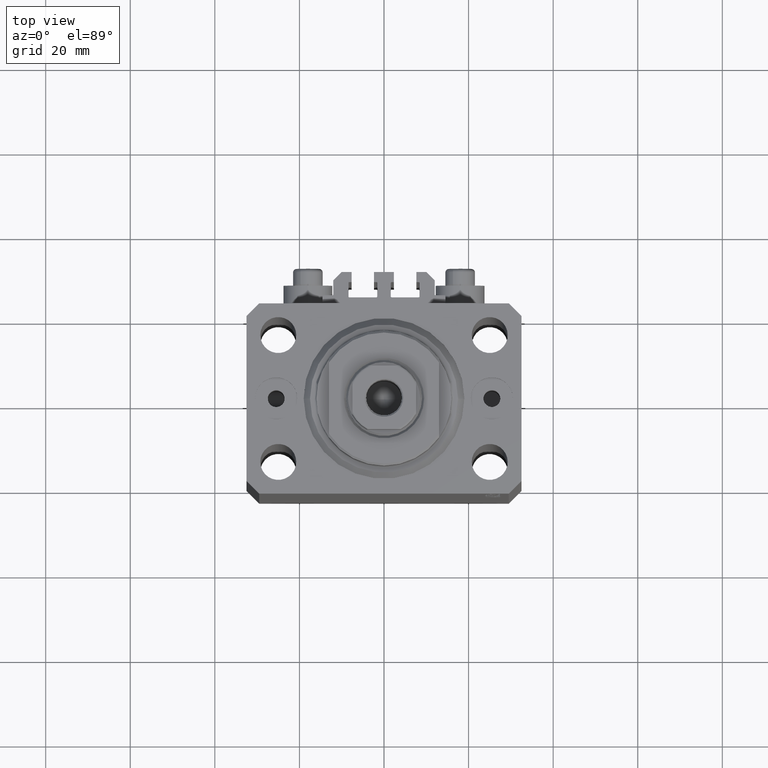
[diagram: clean part render]
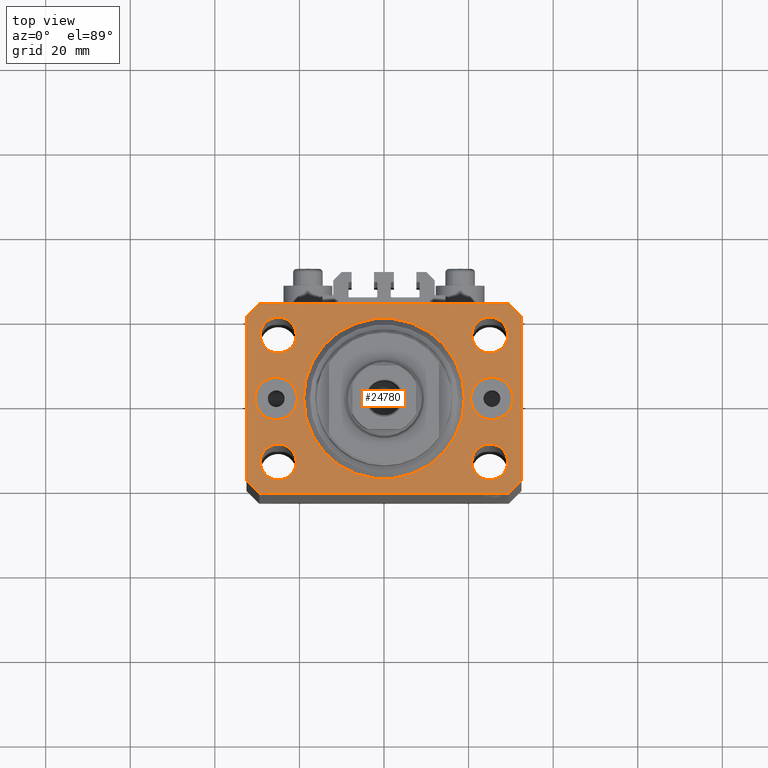
[diagram: same view with one face highlighted and labeled with its STEP entity id]
A machine part, top view. The second image highlights one B-rep face of the part: STEP entity #24780.
In plain terms, the highlighted planar face has unit normal (0, 0, 1).
Its self-contained STEP definition (entity closure, byte-faithful):
#497 = CARTESIAN_POINT ( 'NONE',  ( 24.99999999999999289, -15.00000000000000355, 0.000000000000000000 ) ) ;
#624 = EDGE_CURVE ( 'NONE', #17097, #3085, #45075, .T. ) ;
#657 = ORIENTED_EDGE ( 'NONE', *, *, #6405, .F. ) ;
#824 = DIRECTION ( 'NONE',  ( 1.334402673828349134E-14, 1.000000000000000000, 0.000000000000000000 ) ) ;
#1824 = AXIS2_PLACEMENT_3D ( 'NONE', #20084, #12919, #42280 ) ;
#1940 = ORIENTED_EDGE ( 'NONE', *, *, #33887, .F. ) ;
#2188 = CARTESIAN_POINT ( 'NONE',  ( -19.00000000000000000, 2.326828918379970970E-15, 0.000000000000000000 ) ) ;
#2277 = CARTESIAN_POINT ( 'NONE',  ( 29.49999999999650413, -22.49999999999949196, 0.000000000000000000 ) ) ;
#2363 = CARTESIAN_POINT ( 'NONE',  ( 29.49999999999707967, 22.49999999999952038, 0.000000000000000000 ) ) ;
#2522 = CARTESIAN_POINT ( 'NONE',  ( 0.000000000000000000, 0.000000000000000000, 0.000000000000000000 ) ) ;
#2526 = DIRECTION ( 'NONE',  ( 1.000000000000000000, 0.000000000000000000, 0.000000000000000000 ) ) ;
#2839 = ORIENTED_EDGE ( 'NONE', *, *, #45156, .T. ) ;
#2886 = CARTESIAN_POINT ( 'NONE',  ( 20.75000000002367884, -15.00000000000000355, 0.000000000000000000 ) ) ;
#3085 = VERTEX_POINT ( 'NONE', #37557 ) ;
#3145 = VECTOR ( 'NONE', #27380, 1000.000000000000000 ) ;
#3189 = VERTEX_POINT ( 'NONE', #38037 ) ;
#3345 = CIRCLE ( 'NONE', #1824, 5.000000000003342215 ) ;
#3605 = VERTEX_POINT ( 'NONE', #20776 ) ;
#4018 = CIRCLE ( 'NONE', #10140, 4.249999999976314058 ) ;
#4203 = CARTESIAN_POINT ( 'NONE',  ( 20.49999999999665690, 6.123233995740857512E-16, 0.000000000000000000 ) ) ;
#4318 = CARTESIAN_POINT ( 'NONE',  ( -20.74999999995962341, -15.00000000000000355, 0.000000000000000000 ) ) ;
#4449 = EDGE_CURVE ( 'NONE', #5726, #32735, #3345, .T. ) ;
#4576 = ORIENTED_EDGE ( 'NONE', *, *, #26442, .T. ) ;
#4586 = CIRCLE ( 'NONE', #6907, 5.000000000003342215 ) ;
#4684 = DIRECTION ( 'NONE',  ( 1.000000000000000000, 0.000000000000000000, 0.000000000000000000 ) ) ;
#4784 = DIRECTION ( 'NONE',  ( -1.000000000000000000, -3.528251137580330676E-16, 0.000000000000000000 ) ) ;
#5053 = LINE ( 'NONE', #19619, #37794 ) ;
#5203 = VECTOR ( 'NONE', #824, 1000.000000000000000 ) ;
#5295 = FACE_BOUND ( 'NONE', #29687, .T. ) ;
#5303 = VERTEX_POINT ( 'NONE', #27964 ) ;
#5312 = EDGE_CURVE ( 'NONE', #5303, #23287, #32352, .T. ) ;
#5588 = CARTESIAN_POINT ( 'NONE',  ( -29.25000000002137668, 14.99999999999999645, 0.000000000000000000 ) ) ;
#5726 = VERTEX_POINT ( 'NONE', #40526 ) ;
#5728 = LINE ( 'NONE', #12190, #44851 ) ;
#5996 = AXIS2_PLACEMENT_3D ( 'NONE', #46592, #13900, #11009 ) ;
#6313 = DIRECTION ( 'NONE',  ( 1.000000000000000000, 0.000000000000000000, 0.000000000000000000 ) ) ;
#6405 = EDGE_CURVE ( 'NONE', #14497, #10556, #22436, .T. ) ;
#6474 = DIRECTION ( 'NONE',  ( 0.000000000000000000, 0.000000000000000000, 1.000000000000000000 ) ) ;
#6542 = CIRCLE ( 'NONE', #41614, 4.250000000021375790 ) ;
#6733 = CARTESIAN_POINT ( 'NONE',  ( -32.49999999999650413, -19.49999999999949907, 0.000000000000000000 ) ) ;
#6907 = AXIS2_PLACEMENT_3D ( 'NONE', #28655, #39634, #42767 ) ;
#6936 = CIRCLE ( 'NONE', #10720, 19.00000000000000000 ) ;
#7277 = EDGE_LOOP ( 'NONE', ( #11546, #20777 ) ) ;
#7470 = DIRECTION ( 'NONE',  ( 1.000000000000000000, 0.000000000000000000, 0.000000000000000000 ) ) ;
#8242 = AXIS2_PLACEMENT_3D ( 'NONE', #38473, #35111, #19628 ) ;
#8278 = VERTEX_POINT ( 'NONE', #2188 ) ;
#8597 = CARTESIAN_POINT ( 'NONE',  ( -25.00000000000000000, 14.99999999999999645, 0.000000000000000000 ) ) ;
#9580 = EDGE_CURVE ( 'NONE', #41571, #11416, #46165, .T. ) ;
#9630 = EDGE_CURVE ( 'NONE', #10556, #14497, #6542, .T. ) ;
#9955 = DIRECTION ( 'NONE',  ( 0.000000000000000000, 0.000000000000000000, 1.000000000000000000 ) ) ;
#10140 = AXIS2_PLACEMENT_3D ( 'NONE', #497, #18189, #29858 ) ;
#10287 = DIRECTION ( 'NONE',  ( 0.000000000000000000, 0.000000000000000000, 1.000000000000000000 ) ) ;
#10299 = ORIENTED_EDGE ( 'NONE', *, *, #42006, .T. ) ;
#10556 = VERTEX_POINT ( 'NONE', #5588 ) ;
#10720 = AXIS2_PLACEMENT_3D ( 'NONE', #2522, #20679, #7470 ) ;
#10982 = CARTESIAN_POINT ( 'NONE',  ( 25.00000000000000000, 14.99999999999999289, 0.000000000000000000 ) ) ;
#11009 = DIRECTION ( 'NONE',  ( 1.000000000000000000, 0.000000000000000000, 0.000000000000000000 ) ) ;
#11416 = VERTEX_POINT ( 'NONE', #32536 ) ;
#11546 = ORIENTED_EDGE ( 'NONE', *, *, #42701, .F. ) ;
#11592 = CARTESIAN_POINT ( 'NONE',  ( 32.49999999999651124, -19.49999999999949196, 0.000000000000000000 ) ) ;
#11752 = CARTESIAN_POINT ( 'NONE',  ( 32.49999999999702993, 19.49999999999945999, 0.000000000000000000 ) ) ;
#11802 = EDGE_CURVE ( 'NONE', #28242, #44348, #29606, .T. ) ;
#12190 = CARTESIAN_POINT ( 'NONE',  ( -32.49999999999650413, -19.49999999999949907, 0.000000000000000000 ) ) ;
#12288 = AXIS2_PLACEMENT_3D ( 'NONE', #10982, #10287, #35809 ) ;
#12458 = FACE_BOUND ( 'NONE', #18456, .T. ) ;
#12693 = FACE_BOUND ( 'NONE', #32132, .T. ) ;
#12919 = DIRECTION ( 'NONE',  ( 0.000000000000000000, 0.000000000000000000, 1.000000000000000000 ) ) ;
#13738 = ORIENTED_EDGE ( 'NONE', *, *, #624, .F. ) ;
#13878 = DIRECTION ( 'NONE',  ( 1.000000000000000000, 0.000000000000000000, 0.000000000000000000 ) ) ;
#13900 = DIRECTION ( 'NONE',  ( 0.000000000000000000, 0.000000000000000000, 1.000000000000000000 ) ) ;
#13991 = CARTESIAN_POINT ( 'NONE',  ( 0.000000000000000000, 0.000000000000000000, 0.000000000000000000 ) ) ;
#14377 = CARTESIAN_POINT ( 'NONE',  ( -32.49999999999650413, 19.49999999999949907, 0.000000000000000000 ) ) ;
#14497 = VERTEX_POINT ( 'NONE', #27586 ) ;
#14648 = ORIENTED_EDGE ( 'NONE', *, *, #31332, .F. ) ;
#14833 = ORIENTED_EDGE ( 'NONE', *, *, #36566, .T. ) ;
#15269 = CARTESIAN_POINT ( 'NONE',  ( 29.24999999995729283, 14.99999999999999289, 0.000000000000000000 ) ) ;
#16743 = ORIENTED_EDGE ( 'NONE', *, *, #19873, .F. ) ;
#16841 = CARTESIAN_POINT ( 'NONE',  ( -30.50000000000333955, 6.123233995740857512E-16, 0.000000000000000000 ) ) ;
#17097 = VERTEX_POINT ( 'NONE', #15269 ) ;
#17519 = ORIENTED_EDGE ( 'NONE', *, *, #39868, .T. ) ;
#18189 = DIRECTION ( 'NONE',  ( 0.000000000000000000, 0.000000000000000000, 1.000000000000000000 ) ) ;
#18456 = EDGE_LOOP ( 'NONE', ( #38404, #41334 ) ) ;
#18647 = AXIS2_PLACEMENT_3D ( 'NONE', #36055, #6474, #13878 ) ;
#18681 = EDGE_CURVE ( 'NONE', #23889, #21631, #30299, .T. ) ;
#18997 = LINE ( 'NONE', #11592, #5203 ) ;
#19551 = ORIENTED_EDGE ( 'NONE', *, *, #4449, .F. ) ;
#19578 = DIRECTION ( 'NONE',  ( 0.000000000000000000, 0.000000000000000000, 1.000000000000000000 ) ) ;
#19619 = CARTESIAN_POINT ( 'NONE',  ( -29.49999999999650413, 22.49999999999949907, 0.000000000000000000 ) ) ;
#19628 = DIRECTION ( 'NONE',  ( 1.000000000000000000, 0.000000000000000000, -0.000000000000000000 ) ) ;
#19873 = EDGE_CURVE ( 'NONE', #32735, #5726, #28855, .T. ) ;
#20084 = CARTESIAN_POINT ( 'NONE',  ( -25.50000000000000000, 0.000000000000000000, 0.000000000000000000 ) ) ;
#20099 = FACE_BOUND ( 'NONE', #21817, .T. ) ;
#20177 = AXIS2_PLACEMENT_3D ( 'NONE', #8597, #19578, #34585 ) ;
#20444 = AXIS2_PLACEMENT_3D ( 'NONE', #23968, #30877, #6313 ) ;
#20575 = FACE_OUTER_BOUND ( 'NONE', #28616, .T. ) ;
#20679 = DIRECTION ( 'NONE',  ( 0.000000000000000000, 0.000000000000000000, 1.000000000000000000 ) ) ;
#20776 = CARTESIAN_POINT ( 'NONE',  ( 29.49999999999650413, -22.49999999999949196, 0.000000000000000000 ) ) ;
#20777 = ORIENTED_EDGE ( 'NONE', *, *, #41258, .F. ) ;
#21085 = VECTOR ( 'NONE', #4784, 1000.000000000000000 ) ;
#21159 = AXIS2_PLACEMENT_3D ( 'NONE', #24779, #33033, #46498 ) ;
#21164 = DIRECTION ( 'NONE',  ( 1.000000000000000000, 0.000000000000000000, 0.000000000000000000 ) ) ;
#21240 = VECTOR ( 'NONE', #44698, 1000.000000000000000 ) ;
#21630 = DIRECTION ( 'NONE',  ( 1.000000000000000000, 0.000000000000000000, 0.000000000000000000 ) ) ;
#21631 = VERTEX_POINT ( 'NONE', #36769 ) ;
#21817 = EDGE_LOOP ( 'NONE', ( #17519, #37744 ) ) ;
#21985 = DIRECTION ( 'NONE',  ( 0.000000000000000000, -1.000000000000000000, 0.000000000000000000 ) ) ;
#22436 = CIRCLE ( 'NONE', #20177, 4.250000000021375790 ) ;
#22536 = AXIS2_PLACEMENT_3D ( 'NONE', #46938, #35239, #21630 ) ;
#22586 = EDGE_CURVE ( 'NONE', #44099, #41623, #5728, .T. ) ;
#23287 = VERTEX_POINT ( 'NONE', #4318 ) ;
#23632 = DIRECTION ( 'NONE',  ( 0.7071067811865474617, -0.7071067811865474617, 0.000000000000000000 ) ) ;
#23889 = VERTEX_POINT ( 'NONE', #4203 ) ;
#23901 = PLANE ( 'NONE',  #8242 ) ;
#23968 = CARTESIAN_POINT ( 'NONE',  ( 25.50000000000000000, 0.000000000000000000, 0.000000000000000000 ) ) ;
#24034 = CARTESIAN_POINT ( 'NONE',  ( -29.49999999999650413, 22.49999999999949907, 0.000000000000000000 ) ) ;
#24507 = CARTESIAN_POINT ( 'NONE',  ( -25.00000000000000000, 14.99999999999999645, 0.000000000000000000 ) ) ;
#24779 = CARTESIAN_POINT ( 'NONE',  ( 25.00000000000000000, 14.99999999999999289, 0.000000000000000000 ) ) ;
#24780 = ADVANCED_FACE ( 'NONE', ( #20575, #5295, #34872, #12458, #12693, #27017, #27251, #20099 ), #23901, .T. ) ;
#25072 = ORIENTED_EDGE ( 'NONE', *, *, #11802, .T. ) ;
#25136 = VECTOR ( 'NONE', #27343, 1000.000000000000000 ) ;
#26119 = EDGE_CURVE ( 'NONE', #3189, #30158, #18997, .T. ) ;
#26304 = LINE ( 'NONE', #11752, #21240 ) ;
#26442 = EDGE_CURVE ( 'NONE', #44348, #37924, #5053, .T. ) ;
#26852 = VECTOR ( 'NONE', #21985, 1000.000000000000000 ) ;
#27017 = FACE_BOUND ( 'NONE', #7277, .T. ) ;
#27251 = FACE_BOUND ( 'NONE', #34384, .T. ) ;
#27343 = DIRECTION ( 'NONE',  ( 0.7071067811865483499, 0.7071067811865466846, 0.000000000000000000 ) ) ;
#27380 = DIRECTION ( 'NONE',  ( 1.000000000000000000, 1.176083712526788232E-16, 0.000000000000000000 ) ) ;
#27586 = CARTESIAN_POINT ( 'NONE',  ( -20.74999999997862687, 14.99999999999999645, 0.000000000000000000 ) ) ;
#27964 = CARTESIAN_POINT ( 'NONE',  ( -29.25000000004036593, -15.00000000000000355, 0.000000000000000000 ) ) ;
#28242 = VERTEX_POINT ( 'NONE', #2363 ) ;
#28616 = EDGE_LOOP ( 'NONE', ( #25072, #4576, #2839, #36238, #10299, #37283, #39361, #14833 ) ) ;
#28655 = CARTESIAN_POINT ( 'NONE',  ( 25.50000000000000000, 0.000000000000000000, 0.000000000000000000 ) ) ;
#28855 = CIRCLE ( 'NONE', #5996, 5.000000000003342215 ) ;
#28996 = CARTESIAN_POINT ( 'NONE',  ( -32.49999999999650413, 19.49999999999949907, 0.000000000000000000 ) ) ;
#29606 = LINE ( 'NONE', #36533, #21085 ) ;
#29687 = EDGE_LOOP ( 'NONE', ( #657, #40594 ) ) ;
#29689 = AXIS2_PLACEMENT_3D ( 'NONE', #37383, #45023, #4684 ) ;
#29858 = DIRECTION ( 'NONE',  ( 1.000000000000000000, 0.000000000000000000, 0.000000000000000000 ) ) ;
#30158 = VERTEX_POINT ( 'NONE', #44111 ) ;
#30299 = CIRCLE ( 'NONE', #20444, 5.000000000003342215 ) ;
#30475 = CARTESIAN_POINT ( 'NONE',  ( -29.49999999999650413, -22.49999999999949907, 0.000000000000000000 ) ) ;
#30558 = AXIS2_PLACEMENT_3D ( 'NONE', #13991, #35226, #2526 ) ;
#30877 = DIRECTION ( 'NONE',  ( 0.000000000000000000, -0.000000000000000000, -1.000000000000000000 ) ) ;
#31261 = VERTEX_POINT ( 'NONE', #40455 ) ;
#31332 = EDGE_CURVE ( 'NONE', #3085, #17097, #35626, .T. ) ;
#32132 = EDGE_LOOP ( 'NONE', ( #1940, #39684 ) ) ;
#32352 = CIRCLE ( 'NONE', #18647, 4.250000000040370374 ) ;
#32536 = CARTESIAN_POINT ( 'NONE',  ( 29.24999999997631051, -15.00000000000000355, 0.000000000000000000 ) ) ;
#32547 = EDGE_LOOP ( 'NONE', ( #13738, #14648 ) ) ;
#32735 = VERTEX_POINT ( 'NONE', #16841 ) ;
#33033 = DIRECTION ( 'NONE',  ( 0.000000000000000000, 0.000000000000000000, 1.000000000000000000 ) ) ;
#33887 = EDGE_CURVE ( 'NONE', #23287, #5303, #38831, .T. ) ;
#33911 = EDGE_CURVE ( 'NONE', #3605, #3189, #46188, .T. ) ;
#33917 = DIRECTION ( 'NONE',  ( -0.7071067811865474617, -0.7071067811865474617, 0.000000000000000000 ) ) ;
#34384 = EDGE_LOOP ( 'NONE', ( #19551, #16743 ) ) ;
#34585 = DIRECTION ( 'NONE',  ( 1.000000000000000000, 0.000000000000000000, 0.000000000000000000 ) ) ;
#34872 = FACE_BOUND ( 'NONE', #32547, .T. ) ;
#35111 = DIRECTION ( 'NONE',  ( 0.000000000000000000, 0.000000000000000000, 1.000000000000000000 ) ) ;
#35226 = DIRECTION ( 'NONE',  ( 0.000000000000000000, 0.000000000000000000, 1.000000000000000000 ) ) ;
#35239 = DIRECTION ( 'NONE',  ( 0.000000000000000000, 0.000000000000000000, 1.000000000000000000 ) ) ;
#35626 = CIRCLE ( 'NONE', #21159, 4.249999999957291053 ) ;
#35809 = DIRECTION ( 'NONE',  ( 1.000000000000000000, 0.000000000000000000, 0.000000000000000000 ) ) ;
#36055 = CARTESIAN_POINT ( 'NONE',  ( -24.99999999999999289, -15.00000000000000355, 0.000000000000000000 ) ) ;
#36238 = ORIENTED_EDGE ( 'NONE', *, *, #22586, .T. ) ;
#36533 = CARTESIAN_POINT ( 'NONE',  ( 29.49999999999707967, 22.49999999999952038, 0.000000000000000000 ) ) ;
#36566 = EDGE_CURVE ( 'NONE', #30158, #28242, #26304, .T. ) ;
#36769 = CARTESIAN_POINT ( 'NONE',  ( 30.50000000000333955, 0.000000000000000000, 0.000000000000000000 ) ) ;
#37283 = ORIENTED_EDGE ( 'NONE', *, *, #33911, .T. ) ;
#37383 = CARTESIAN_POINT ( 'NONE',  ( -24.99999999999999289, -15.00000000000000355, 0.000000000000000000 ) ) ;
#37557 = CARTESIAN_POINT ( 'NONE',  ( 20.75000000004271072, 14.99999999999999289, 0.000000000000000000 ) ) ;
#37647 = LINE ( 'NONE', #30475, #3145 ) ;
#37744 = ORIENTED_EDGE ( 'NONE', *, *, #18681, .T. ) ;
#37794 = VECTOR ( 'NONE', #33917, 1000.000000000000114 ) ;
#37924 = VERTEX_POINT ( 'NONE', #28996 ) ;
#38037 = CARTESIAN_POINT ( 'NONE',  ( 32.49999999999651124, -19.49999999999949196, 0.000000000000000000 ) ) ;
#38404 = ORIENTED_EDGE ( 'NONE', *, *, #46377, .F. ) ;
#38473 = CARTESIAN_POINT ( 'NONE',  ( 0.000000000000000000, 0.000000000000000000, 0.000000000000000000 ) ) ;
#38831 = CIRCLE ( 'NONE', #29689, 4.250000000040370374 ) ;
#39361 = ORIENTED_EDGE ( 'NONE', *, *, #26119, .T. ) ;
#39634 = DIRECTION ( 'NONE',  ( 0.000000000000000000, -0.000000000000000000, -1.000000000000000000 ) ) ;
#39684 = ORIENTED_EDGE ( 'NONE', *, *, #5312, .F. ) ;
#39868 = EDGE_CURVE ( 'NONE', #21631, #23889, #4586, .T. ) ;
#40455 = CARTESIAN_POINT ( 'NONE',  ( 19.00000000000000000, 0.000000000000000000, 0.000000000000000000 ) ) ;
#40526 = CARTESIAN_POINT ( 'NONE',  ( -20.49999999999665690, 0.000000000000000000, 0.000000000000000000 ) ) ;
#40594 = ORIENTED_EDGE ( 'NONE', *, *, #9630, .F. ) ;
#41258 = EDGE_CURVE ( 'NONE', #8278, #31261, #6936, .T. ) ;
#41334 = ORIENTED_EDGE ( 'NONE', *, *, #9580, .F. ) ;
#41571 = VERTEX_POINT ( 'NONE', #2886 ) ;
#41614 = AXIS2_PLACEMENT_3D ( 'NONE', #24507, #9955, #21164 ) ;
#41623 = VERTEX_POINT ( 'NONE', #44881 ) ;
#42006 = EDGE_CURVE ( 'NONE', #41623, #3605, #37647, .T. ) ;
#42280 = DIRECTION ( 'NONE',  ( 1.000000000000000000, 0.000000000000000000, 0.000000000000000000 ) ) ;
#42701 = EDGE_CURVE ( 'NONE', #31261, #8278, #45066, .T. ) ;
#42767 = DIRECTION ( 'NONE',  ( 1.000000000000000000, 0.000000000000000000, 0.000000000000000000 ) ) ;
#44099 = VERTEX_POINT ( 'NONE', #6733 ) ;
#44111 = CARTESIAN_POINT ( 'NONE',  ( 32.49999999999702993, 19.49999999999945999, 0.000000000000000000 ) ) ;
#44348 = VERTEX_POINT ( 'NONE', #24034 ) ;
#44698 = DIRECTION ( 'NONE',  ( -0.7071067811865344721, 0.7071067811865606734, 0.000000000000000000 ) ) ;
#44851 = VECTOR ( 'NONE', #23632, 1000.000000000000114 ) ;
#44881 = CARTESIAN_POINT ( 'NONE',  ( -29.49999999999650413, -22.49999999999949907, 0.000000000000000000 ) ) ;
#45023 = DIRECTION ( 'NONE',  ( 0.000000000000000000, 0.000000000000000000, 1.000000000000000000 ) ) ;
#45066 = CIRCLE ( 'NONE', #30558, 19.00000000000000000 ) ;
#45075 = CIRCLE ( 'NONE', #12288, 4.249999999957291053 ) ;
#45156 = EDGE_CURVE ( 'NONE', #37924, #44099, #47063, .T. ) ;
#46165 = CIRCLE ( 'NONE', #22536, 4.249999999976314058 ) ;
#46188 = LINE ( 'NONE', #2277, #25136 ) ;
#46377 = EDGE_CURVE ( 'NONE', #11416, #41571, #4018, .T. ) ;
#46498 = DIRECTION ( 'NONE',  ( 1.000000000000000000, 0.000000000000000000, 0.000000000000000000 ) ) ;
#46592 = CARTESIAN_POINT ( 'NONE',  ( -25.50000000000000000, 0.000000000000000000, 0.000000000000000000 ) ) ;
#46938 = CARTESIAN_POINT ( 'NONE',  ( 24.99999999999999289, -15.00000000000000355, 0.000000000000000000 ) ) ;
#47063 = LINE ( 'NONE', #14377, #26852 ) ;